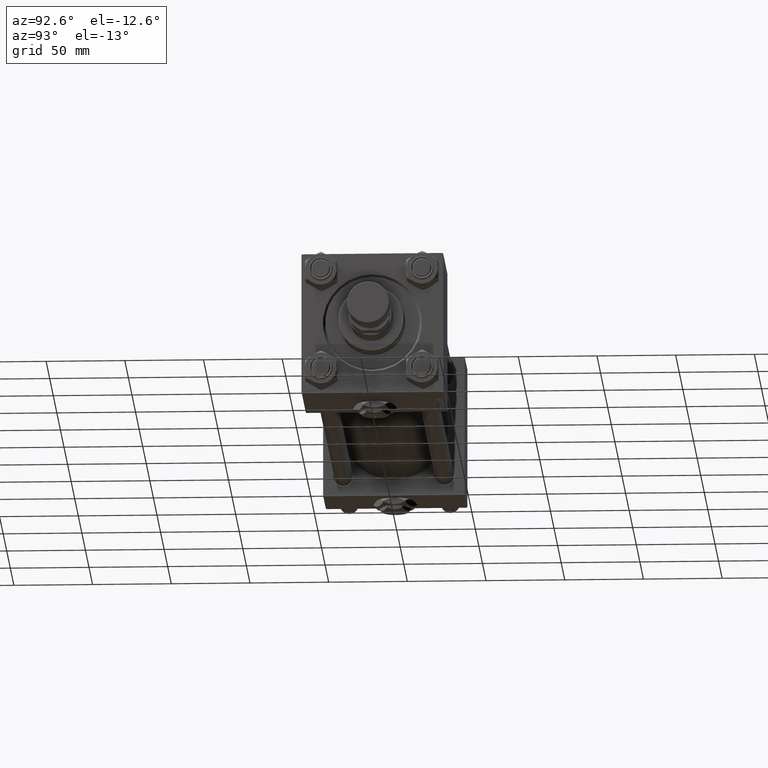
[diagram: clean part render]
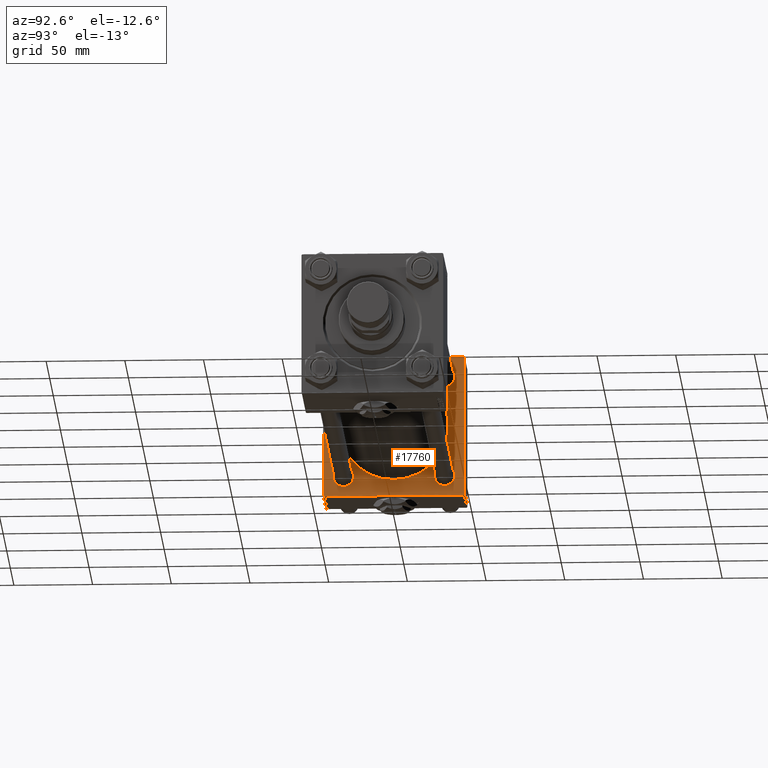
[diagram: same view with one face highlighted and labeled with its STEP entity id]
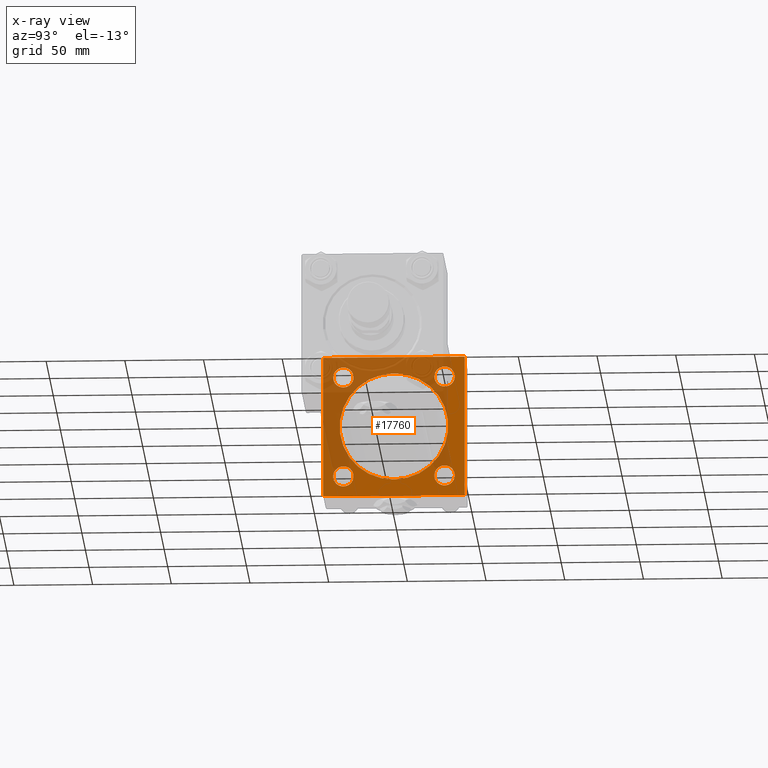
[diagram: x-ray of the same camera — body ghosted, the highlighted face saturated]
A machine part, auxiliary view. The second image highlights one B-rep face of the part: STEP entity #17760.
The next image is the same camera in x-ray: the body ghosted, the highlighted face saturated — about 48% of this face is hidden behind the body in this view.
In plain terms, the highlighted planar face has unit normal (-1, 0, 0).
Its self-contained STEP definition (entity closure, byte-faithful):
#77 = LINE ( 'NONE', #7499, #38292 ) ;
#243 = DIRECTION ( 'NONE',  ( -0.000000000000000000, -0.7071067811865425767, -0.7071067811865524577 ) ) ;
#297 = AXIS2_PLACEMENT_3D ( 'NONE', #16082, #8929, #48624 ) ;
#1169 = CARTESIAN_POINT ( 'NONE',  ( 37.00000000000000000, -32.14999999999997726, 25.64999999999994884 ) ) ;
#1499 = VERTEX_POINT ( 'NONE', #41477 ) ;
#1638 = DIRECTION ( 'NONE',  ( -0.000000000000000000, 0.7071067811865474617, 0.7071067811865474617 ) ) ;
#1675 = VECTOR ( 'NONE', #18084, 1000.000000000000114 ) ;
#2884 = LINE ( 'NONE', #3154, #16088 ) ;
#2972 = DIRECTION ( 'NONE',  ( 0.000000000000000000, 0.000000000000000000, 1.000000000000000000 ) ) ;
#3154 = CARTESIAN_POINT ( 'NONE',  ( 37.00000000000000000, 44.99999999999998579, -44.99999999999998579 ) ) ;
#3851 = DIRECTION ( 'NONE',  ( 0.000000000000000000, 0.000000000000000000, -1.000000000000000000 ) ) ;
#4013 = ORIENTED_EDGE ( 'NONE', *, *, #4639, .F. ) ;
#4214 = FACE_BOUND ( 'NONE', #25162, .T. ) ;
#4436 = CIRCLE ( 'NONE', #7840, 6.499999999999950262 ) ;
#4606 = DIRECTION ( 'NONE',  ( 0.000000000000000000, 0.000000000000000000, 1.000000000000000000 ) ) ;
#4639 = EDGE_CURVE ( 'NONE', #29068, #20106, #2884, .T. ) ;
#4775 = EDGE_LOOP ( 'NONE', ( #17751, #40531 ) ) ;
#5184 = AXIS2_PLACEMENT_3D ( 'NONE', #40353, #48036, #12051 ) ;
#5789 = CARTESIAN_POINT ( 'NONE',  ( 37.00000000000000000, -45.00000000000000000, -44.49999999999995737 ) ) ;
#6837 = EDGE_CURVE ( 'NONE', #9877, #1499, #25435, .T. ) ;
#6880 = VERTEX_POINT ( 'NONE', #13607 ) ;
#7499 = CARTESIAN_POINT ( 'NONE',  ( 37.00000000000000000, 44.49999999999998579, 45.00000000000001421 ) ) ;
#7550 = ORIENTED_EDGE ( 'NONE', *, *, #10793, .T. ) ;
#7840 = AXIS2_PLACEMENT_3D ( 'NONE', #52163, #11434, #32052 ) ;
#7922 = CARTESIAN_POINT ( 'NONE',  ( 37.00000000000000000, 44.99999999999998579, -44.49999999999995737 ) ) ;
#8522 = CARTESIAN_POINT ( 'NONE',  ( 37.00000000000000711, 0.000000000000000000, 0.000000000000000000 ) ) ;
#8554 = DIRECTION ( 'NONE',  ( 0.000000000000000000, -1.000000000000000000, -1.541976423090495387E-16 ) ) ;
#8578 = CARTESIAN_POINT ( 'NONE',  ( 37.00000000000000000, 44.99999999999998579, 45.00000000000001421 ) ) ;
#8778 = AXIS2_PLACEMENT_3D ( 'NONE', #16105, #51838, #44159 ) ;
#8929 = DIRECTION ( 'NONE',  ( -1.000000000000000000, 0.000000000000000000, -0.000000000000000000 ) ) ;
#9311 = LINE ( 'NONE', #30181, #51483 ) ;
#9644 = VECTOR ( 'NONE', #243, 1000.000000000000114 ) ;
#9877 = VERTEX_POINT ( 'NONE', #27037 ) ;
#10253 = CARTESIAN_POINT ( 'NONE',  ( 37.00000000000000711, 0.000000000000000000, 34.49999999999999289 ) ) ;
#10487 = DIRECTION ( 'NONE',  ( 0.000000000000000000, 0.000000000000000000, 1.000000000000000000 ) ) ;
#10793 = EDGE_CURVE ( 'NONE', #25088, #18749, #77, .T. ) ;
#10871 = CIRCLE ( 'NONE', #40447, 6.499999999999950262 ) ;
#11178 = EDGE_LOOP ( 'NONE', ( #49308, #36517 ) ) ;
#11434 = DIRECTION ( 'NONE',  ( -1.000000000000000000, 0.000000000000000000, -0.000000000000000000 ) ) ;
#11570 = ORIENTED_EDGE ( 'NONE', *, *, #34231, .T. ) ;
#12051 = DIRECTION ( 'NONE',  ( 0.000000000000000000, 0.000000000000000000, 1.000000000000000000 ) ) ;
#12206 = ORIENTED_EDGE ( 'NONE', *, *, #36583, .T. ) ;
#12412 = ORIENTED_EDGE ( 'NONE', *, *, #37204, .T. ) ;
#12579 = VECTOR ( 'NONE', #3851, 1000.000000000000000 ) ;
#12602 = DIRECTION ( 'NONE',  ( 0.000000000000000000, 0.000000000000000000, 1.000000000000000000 ) ) ;
#13222 = CIRCLE ( 'NONE', #17442, 34.49999999999999289 ) ;
#13607 = CARTESIAN_POINT ( 'NONE',  ( 37.00000000000000711, 4.225031457058367344E-15, -34.49999999999999289 ) ) ;
#14195 = CARTESIAN_POINT ( 'NONE',  ( 37.00000000000000000, -32.14999999999997726, -32.15000000000001279 ) ) ;
#14320 = AXIS2_PLACEMENT_3D ( 'NONE', #8522, #45294, #16191 ) ;
#14437 = EDGE_CURVE ( 'NONE', #18749, #37060, #29174, .T. ) ;
#14649 = EDGE_CURVE ( 'NONE', #1499, #9877, #4436, .T. ) ;
#14725 = CARTESIAN_POINT ( 'NONE',  ( 37.00000000000000000, -44.49999999999995737, -45.00000000000000000 ) ) ;
#14965 = DIRECTION ( 'NONE',  ( 0.000000000000000000, 0.000000000000000000, 1.000000000000000000 ) ) ;
#15005 = VERTEX_POINT ( 'NONE', #7922 ) ;
#15130 = CARTESIAN_POINT ( 'NONE',  ( 37.00000000000000000, -32.14999999999997726, -25.64999999999994884 ) ) ;
#15776 = EDGE_LOOP ( 'NONE', ( #47799, #16249 ) ) ;
#15787 = DIRECTION ( 'NONE',  ( -1.000000000000000000, 0.000000000000000000, -0.000000000000000000 ) ) ;
#15800 = VERTEX_POINT ( 'NONE', #5789 ) ;
#16082 = CARTESIAN_POINT ( 'NONE',  ( 37.00000000000000000, 32.14999999999999147, -32.15000000000000568 ) ) ;
#16088 = VECTOR ( 'NONE', #27980, 1000.000000000000000 ) ;
#16105 = CARTESIAN_POINT ( 'NONE',  ( 37.00000000000000000, 0.000000000000000000, 0.000000000000000000 ) ) ;
#16191 = DIRECTION ( 'NONE',  ( 0.000000000000000000, 0.000000000000000000, 1.000000000000000000 ) ) ;
#16249 = ORIENTED_EDGE ( 'NONE', *, *, #27854, .F. ) ;
#16624 = FACE_BOUND ( 'NONE', #4775, .T. ) ;
#17442 = AXIS2_PLACEMENT_3D ( 'NONE', #22543, #51382, #2972 ) ;
#17451 = VERTEX_POINT ( 'NONE', #15130 ) ;
#17631 = AXIS2_PLACEMENT_3D ( 'NONE', #51212, #46981, #14965 ) ;
#17751 = ORIENTED_EDGE ( 'NONE', *, *, #32620, .T. ) ;
#17760 = ADVANCED_FACE ( 'NONE', ( #36211, #4214, #16624, #36467, #31728, #24050 ), #47868, .F. ) ;
#17779 = EDGE_CURVE ( 'NONE', #37060, #44813, #40193, .T. ) ;
#18084 = DIRECTION ( 'NONE',  ( 0.000000000000000000, 0.7071067811865474617, -0.7071067811865474617 ) ) ;
#18605 = CARTESIAN_POINT ( 'NONE',  ( 37.00000000000000000, -44.49999999999998579, -45.00000000000000000 ) ) ;
#18749 = VERTEX_POINT ( 'NONE', #34922 ) ;
#18899 = ORIENTED_EDGE ( 'NONE', *, *, #14437, .T. ) ;
#19936 = CARTESIAN_POINT ( 'NONE',  ( 37.00000000000000000, -32.14999999999997726, 38.65000000000007674 ) ) ;
#20106 = VERTEX_POINT ( 'NONE', #14725 ) ;
#20803 = DIRECTION ( 'NONE',  ( -1.000000000000000000, 0.000000000000000000, -0.000000000000000000 ) ) ;
#21048 = ORIENTED_EDGE ( 'NONE', *, *, #17779, .T. ) ;
#21249 = CARTESIAN_POINT ( 'NONE',  ( 37.00000000000000000, -32.14999999999997726, 32.15000000000001279 ) ) ;
#21621 = CARTESIAN_POINT ( 'NONE',  ( 37.00000000000000000, 44.49999999999998579, -44.99999999999998579 ) ) ;
#22200 = CARTESIAN_POINT ( 'NONE',  ( 37.00000000000000000, 44.99999999999998579, 44.50000000000001421 ) ) ;
#22385 = DIRECTION ( 'NONE',  ( -1.000000000000000000, 0.000000000000000000, -0.000000000000000000 ) ) ;
#22404 = AXIS2_PLACEMENT_3D ( 'NONE', #21249, #48273, #4606 ) ;
#22505 = VERTEX_POINT ( 'NONE', #30502 ) ;
#22543 = CARTESIAN_POINT ( 'NONE',  ( 37.00000000000000711, 0.000000000000000000, 0.000000000000000000 ) ) ;
#23127 = ORIENTED_EDGE ( 'NONE', *, *, #46490, .T. ) ;
#23222 = DIRECTION ( 'NONE',  ( 0.000000000000000000, 7.709882115452476934E-17, -1.000000000000000000 ) ) ;
#24050 = FACE_OUTER_BOUND ( 'NONE', #29008, .T. ) ;
#24334 = CARTESIAN_POINT ( 'NONE',  ( 37.00000000000000000, -44.49999999999995737, 45.00000000000000000 ) ) ;
#24833 = ORIENTED_EDGE ( 'NONE', *, *, #32677, .F. ) ;
#25088 = VERTEX_POINT ( 'NONE', #22200 ) ;
#25162 = EDGE_LOOP ( 'NONE', ( #34355, #12206 ) ) ;
#25435 = CIRCLE ( 'NONE', #5184, 6.499999999999950262 ) ;
#25749 = LINE ( 'NONE', #18605, #1675 ) ;
#26389 = VECTOR ( 'NONE', #8554, 1000.000000000000000 ) ;
#26898 = VERTEX_POINT ( 'NONE', #19936 ) ;
#26919 = CARTESIAN_POINT ( 'NONE',  ( 37.00000000000000000, -45.00000000000000711, 45.00000000000000000 ) ) ;
#27037 = CARTESIAN_POINT ( 'NONE',  ( 37.00000000000000000, 32.14999999999999147, 25.65000000000005542 ) ) ;
#27854 = EDGE_CURVE ( 'NONE', #6880, #46283, #13222, .T. ) ;
#27980 = DIRECTION ( 'NONE',  ( 0.000000000000000000, -1.000000000000000000, -1.541976423090495633E-16 ) ) ;
#29008 = EDGE_LOOP ( 'NONE', ( #4013, #11570, #24833, #7550, #18899, #21048, #12412, #43930 ) ) ;
#29068 = VERTEX_POINT ( 'NONE', #21621 ) ;
#29174 = LINE ( 'NONE', #41612, #26389 ) ;
#30181 = CARTESIAN_POINT ( 'NONE',  ( 37.00000000000000000, 44.99999999999998579, -44.49999999999998579 ) ) ;
#30502 = CARTESIAN_POINT ( 'NONE',  ( 37.00000000000000000, -32.14999999999997726, -38.65000000000007674 ) ) ;
#31728 = FACE_BOUND ( 'NONE', #15776, .T. ) ;
#32026 = CIRCLE ( 'NONE', #14320, 34.49999999999999289 ) ;
#32052 = DIRECTION ( 'NONE',  ( 0.000000000000000000, 0.000000000000000000, 1.000000000000000000 ) ) ;
#32495 = ORIENTED_EDGE ( 'NONE', *, *, #34966, .T. ) ;
#32620 = EDGE_CURVE ( 'NONE', #40823, #26898, #48049, .T. ) ;
#32677 = EDGE_CURVE ( 'NONE', #25088, #15005, #52251, .T. ) ;
#33122 = VERTEX_POINT ( 'NONE', #38062 ) ;
#33369 = AXIS2_PLACEMENT_3D ( 'NONE', #48844, #15787, #12602 ) ;
#33501 = DIRECTION ( 'NONE',  ( 0.000000000000000000, 0.000000000000000000, 1.000000000000000000 ) ) ;
#34077 = EDGE_CURVE ( 'NONE', #46283, #6880, #32026, .T. ) ;
#34231 = EDGE_CURVE ( 'NONE', #29068, #15005, #9311, .T. ) ;
#34355 = ORIENTED_EDGE ( 'NONE', *, *, #42257, .T. ) ;
#34439 = CARTESIAN_POINT ( 'NONE',  ( 37.00000000000000000, -45.00000000000000711, 44.49999999999997158 ) ) ;
#34922 = CARTESIAN_POINT ( 'NONE',  ( 37.00000000000000000, 44.49999999999998579, 45.00000000000001421 ) ) ;
#34966 = EDGE_CURVE ( 'NONE', #22505, #17451, #41358, .T. ) ;
#35094 = CIRCLE ( 'NONE', #22404, 6.500000000000061284 ) ;
#35651 = CARTESIAN_POINT ( 'NONE',  ( 37.00000000000000000, 32.14999999999999147, -38.64999999999995595 ) ) ;
#36211 = FACE_BOUND ( 'NONE', #39019, .T. ) ;
#36467 = FACE_BOUND ( 'NONE', #11178, .T. ) ;
#36517 = ORIENTED_EDGE ( 'NONE', *, *, #14649, .T. ) ;
#36583 = EDGE_CURVE ( 'NONE', #33122, #37375, #10871, .T. ) ;
#37060 = VERTEX_POINT ( 'NONE', #24334 ) ;
#37204 = EDGE_CURVE ( 'NONE', #44813, #15800, #46787, .T. ) ;
#37375 = VERTEX_POINT ( 'NONE', #35651 ) ;
#37793 = EDGE_CURVE ( 'NONE', #15800, #20106, #25749, .T. ) ;
#38062 = CARTESIAN_POINT ( 'NONE',  ( 37.00000000000000000, 32.14999999999999147, -25.65000000000005542 ) ) ;
#38292 = VECTOR ( 'NONE', #48222, 1000.000000000000114 ) ;
#38714 = AXIS2_PLACEMENT_3D ( 'NONE', #14195, #22385, #10487 ) ;
#39019 = EDGE_LOOP ( 'NONE', ( #32495, #23127 ) ) ;
#39299 = CIRCLE ( 'NONE', #33369, 6.500000000000061284 ) ;
#40193 = LINE ( 'NONE', #43906, #9644 ) ;
#40353 = CARTESIAN_POINT ( 'NONE',  ( 37.00000000000000000, 32.14999999999999147, 32.15000000000000568 ) ) ;
#40447 = AXIS2_PLACEMENT_3D ( 'NONE', #49647, #20803, #33501 ) ;
#40531 = ORIENTED_EDGE ( 'NONE', *, *, #50629, .T. ) ;
#40823 = VERTEX_POINT ( 'NONE', #1169 ) ;
#41358 = CIRCLE ( 'NONE', #38714, 6.500000000000061284 ) ;
#41477 = CARTESIAN_POINT ( 'NONE',  ( 37.00000000000000000, 32.14999999999999147, 38.64999999999995595 ) ) ;
#41612 = CARTESIAN_POINT ( 'NONE',  ( 37.00000000000000000, 44.99999999999998579, 45.00000000000001421 ) ) ;
#42257 = EDGE_CURVE ( 'NONE', #37375, #33122, #44212, .T. ) ;
#43906 = CARTESIAN_POINT ( 'NONE',  ( 37.00000000000000000, -45.00000000000000711, 44.49999999999997158 ) ) ;
#43930 = ORIENTED_EDGE ( 'NONE', *, *, #37793, .T. ) ;
#44159 = DIRECTION ( 'NONE',  ( -0.000000000000000000, 0.000000000000000000, 1.000000000000000000 ) ) ;
#44212 = CIRCLE ( 'NONE', #297, 6.499999999999950262 ) ;
#44711 = VECTOR ( 'NONE', #23222, 1000.000000000000000 ) ;
#44813 = VERTEX_POINT ( 'NONE', #34439 ) ;
#45294 = DIRECTION ( 'NONE',  ( 1.000000000000000000, -0.000000000000000000, 0.000000000000000000 ) ) ;
#46283 = VERTEX_POINT ( 'NONE', #10253 ) ;
#46490 = EDGE_CURVE ( 'NONE', #17451, #22505, #39299, .T. ) ;
#46787 = LINE ( 'NONE', #26919, #44711 ) ;
#46981 = DIRECTION ( 'NONE',  ( -1.000000000000000000, 0.000000000000000000, -0.000000000000000000 ) ) ;
#47799 = ORIENTED_EDGE ( 'NONE', *, *, #34077, .F. ) ;
#47868 = PLANE ( 'NONE',  #8778 ) ;
#48036 = DIRECTION ( 'NONE',  ( -1.000000000000000000, 0.000000000000000000, -0.000000000000000000 ) ) ;
#48049 = CIRCLE ( 'NONE', #17631, 6.500000000000061284 ) ;
#48222 = DIRECTION ( 'NONE',  ( 0.000000000000000000, -0.7071067811865474617, 0.7071067811865474617 ) ) ;
#48273 = DIRECTION ( 'NONE',  ( -1.000000000000000000, 0.000000000000000000, -0.000000000000000000 ) ) ;
#48624 = DIRECTION ( 'NONE',  ( 0.000000000000000000, 0.000000000000000000, 1.000000000000000000 ) ) ;
#48844 = CARTESIAN_POINT ( 'NONE',  ( 37.00000000000000000, -32.14999999999997726, -32.15000000000001279 ) ) ;
#49308 = ORIENTED_EDGE ( 'NONE', *, *, #6837, .T. ) ;
#49647 = CARTESIAN_POINT ( 'NONE',  ( 37.00000000000000000, 32.14999999999999147, -32.15000000000000568 ) ) ;
#50629 = EDGE_CURVE ( 'NONE', #26898, #40823, #35094, .T. ) ;
#51212 = CARTESIAN_POINT ( 'NONE',  ( 37.00000000000000000, -32.14999999999997726, 32.15000000000001279 ) ) ;
#51382 = DIRECTION ( 'NONE',  ( 1.000000000000000000, -0.000000000000000000, 0.000000000000000000 ) ) ;
#51483 = VECTOR ( 'NONE', #1638, 1000.000000000000114 ) ;
#51838 = DIRECTION ( 'NONE',  ( -1.000000000000000000, 0.000000000000000000, -0.000000000000000000 ) ) ;
#52163 = CARTESIAN_POINT ( 'NONE',  ( 37.00000000000000000, 32.14999999999999147, 32.15000000000000568 ) ) ;
#52251 = LINE ( 'NONE', #8578, #12579 ) ;